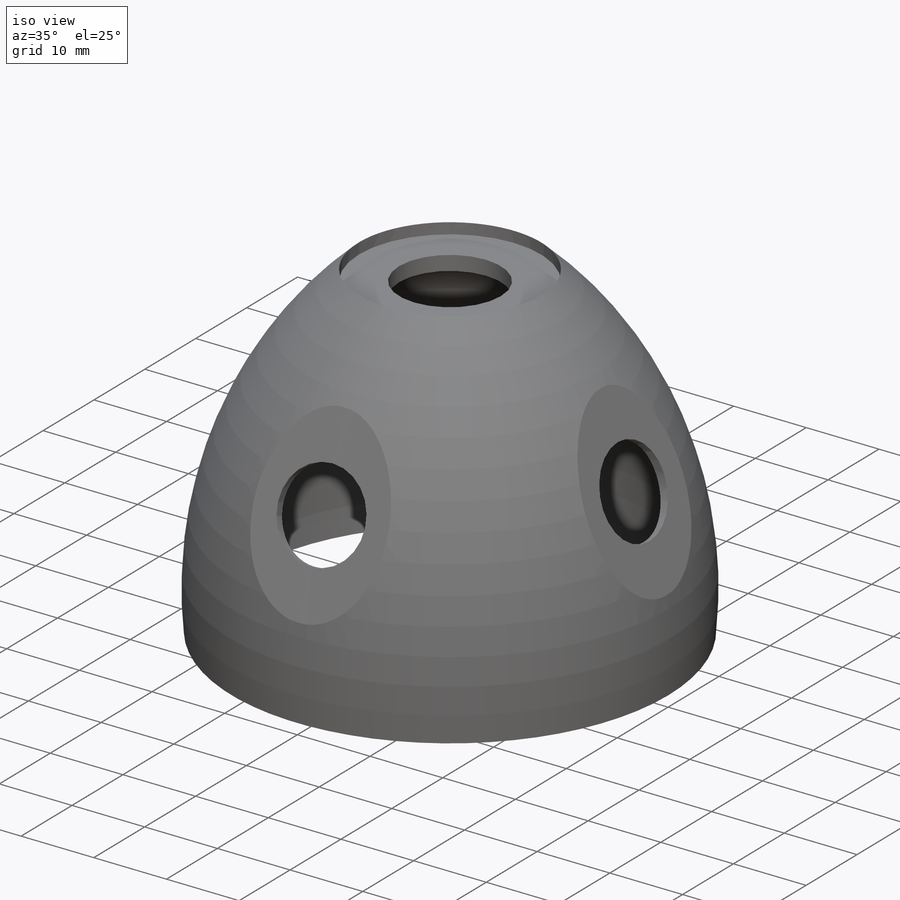
[diagram: iso view]
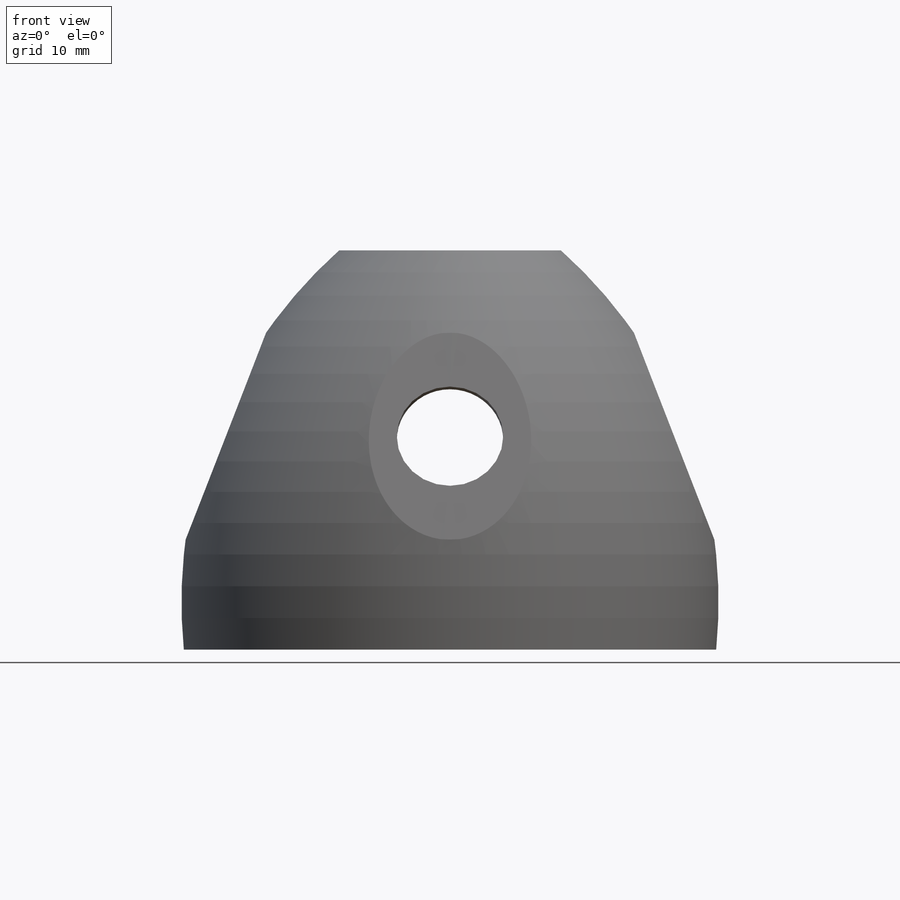
[diagram: front view]
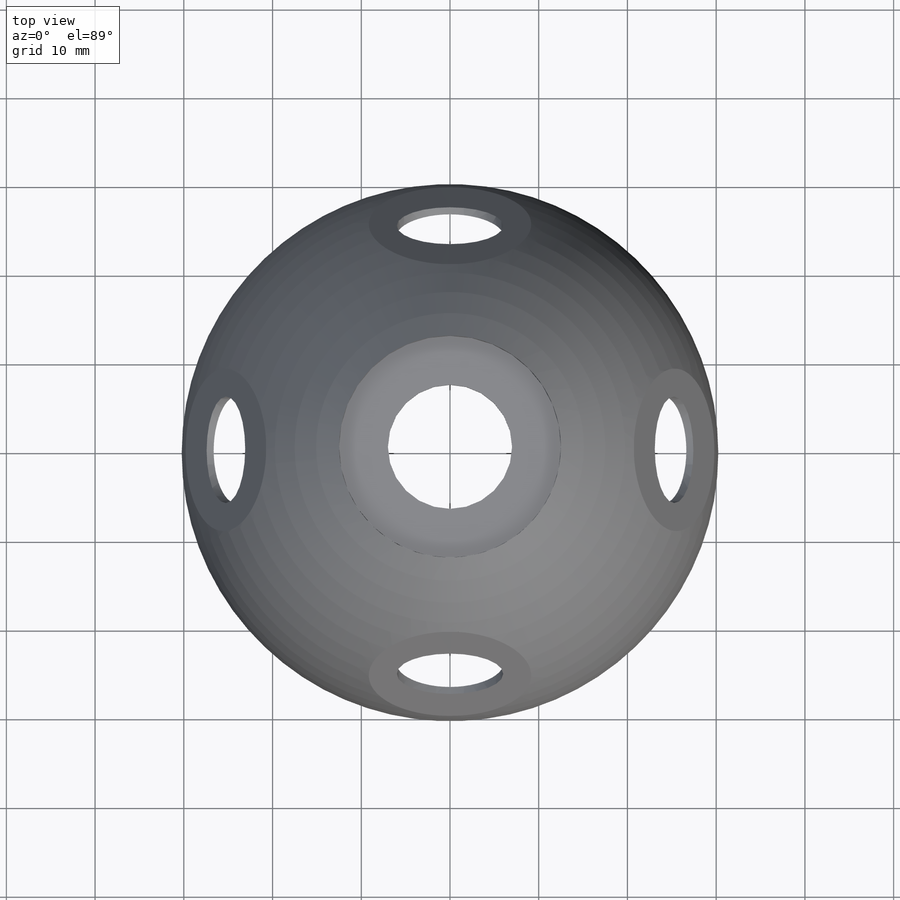
[diagram: top view]
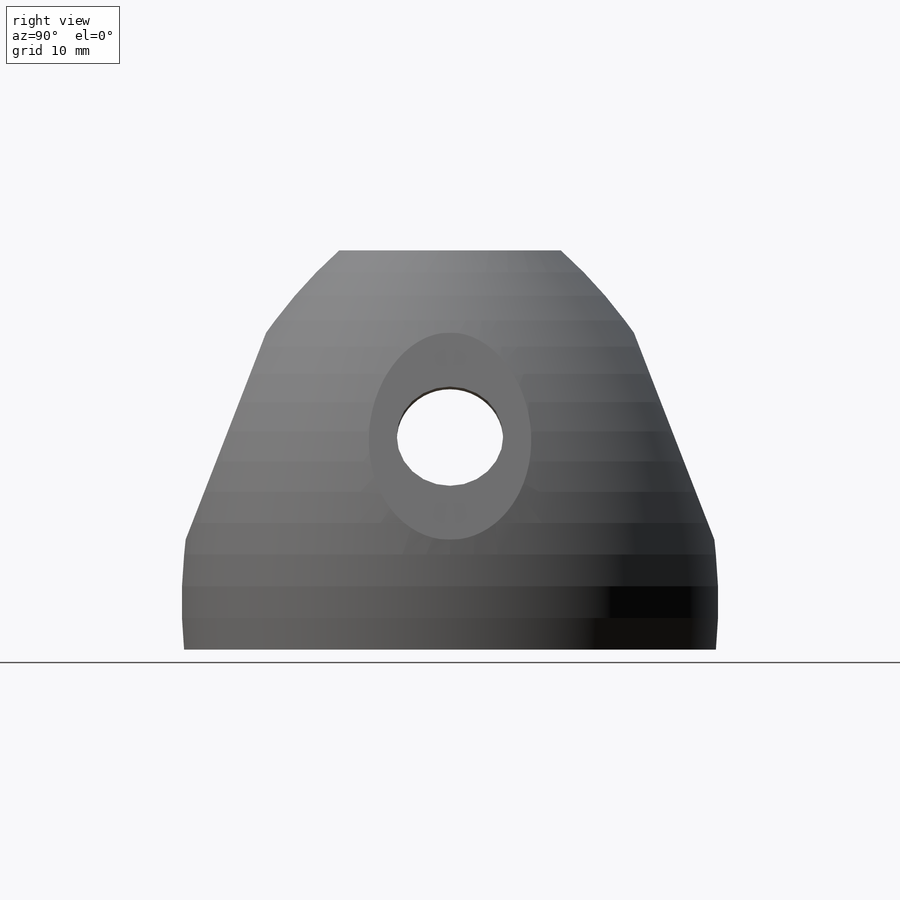
[diagram: right view]
SOLIDWORKS PART (.sldprt)
format: sldprt  version: not decoded by parser v0  size: 400,896 bytes
history: native  units: mm
features: sketch x8, plane x4, cut_extrude x2, hole x2, thread x2, material x1, revolve x1, shell x1, pattern_circular x1 (+10 scaffold rows collapsed)
feature tree (32):
  scaffold x10  (default folders/planes/origin — collapsed)
  material  "Material <nicht festgelegt>"
  plane  "Ebene vorne"
  plane  "Ebene oben"
  plane  "Ebene rechts"
  sketch  "Skizze1"  dims[D2=~53.152454mm D1=12.5mm D3=30.0mm D4=45.0mm]
  revolve  "Rotation1"  Angle=360deg
  sketch  "Skizze2"  dims[D1=25.0mm]
  cut_extrude  "Schnitt-Linear austragen1"  Depth=1.5mm
  shell  "Wandung1"  Thickness=2mm
  hole  "M16 Gewindebohrung1"  Diameter=14mm Depth=2mm
  sketch  "Skizze4"
  sketch  "Skizze3"  dims[hole-wizard template sketch: 59 standard entries collapsed; hole parameters kept: c18.Bohrerdurchmesser=14.0mm c18.Bohrungstiefe=2.0mm]
  thread  "Bohrungsgewinde1"  Diameter=16mm  [1 undecoded]
  sketch  "Skizze5"  dims[c1.D1=60.0mm c2.D1=45.0deg c2.D2=~36.856775mm c3.D1=45.0mm c4.D1=~68.749494deg c5.D1=45.0mm c6.D1=~68.749494deg]
  plane  "Ebene1"
  sketch  "Skizze6"  dims[D1=25.0mm]
  cut_extrude  "Schnitt-Linear austragen2"  Depth=1.5mm
  hole  "M14 Gewindebohrung1"  Diameter=12mm Depth=0.5mm
  sketch  "Skizze8"
  sketch  "Skizze7"  dims[hole-wizard template sketch: 59 standard entries collapsed; hole parameters kept: c18.Bohrerdurchmesser=12.0mm c18.Bohrungstiefe=0.5mm]
  thread  "Bohrungsgewinde2"  Diameter=14mm  [1 undecoded]
  pattern_circular  "Kreismuster1"  Count=4 Angle=360deg
decode coverage: 15 of 17 modeling features carry decoded parameters
note: ~ marks probable driven/reference dimensions
note: 2 parameter values undecoded
note: suppression state not decoded; provenance and decode notes live in map.json
